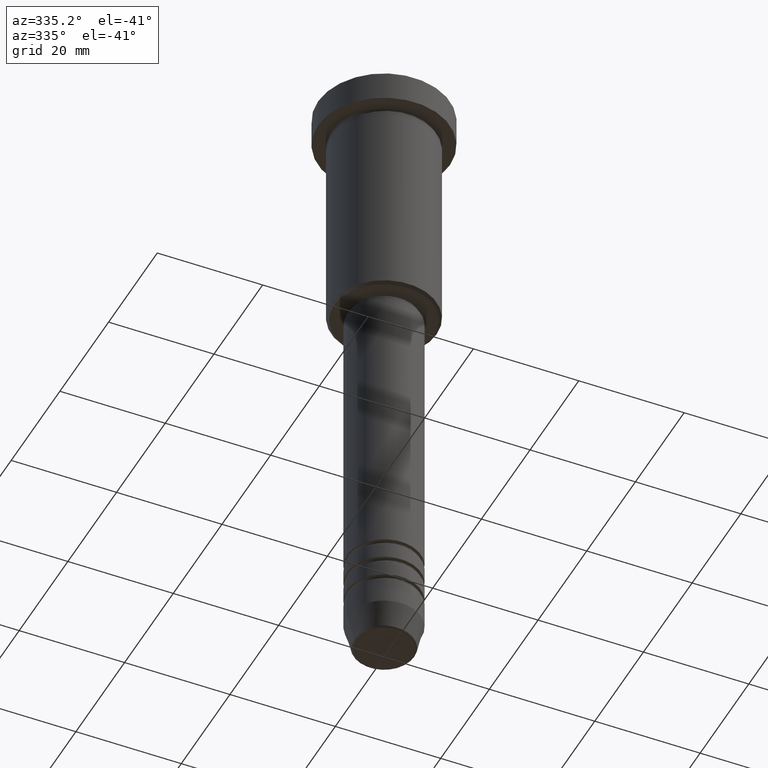
[diagram: clean part render]
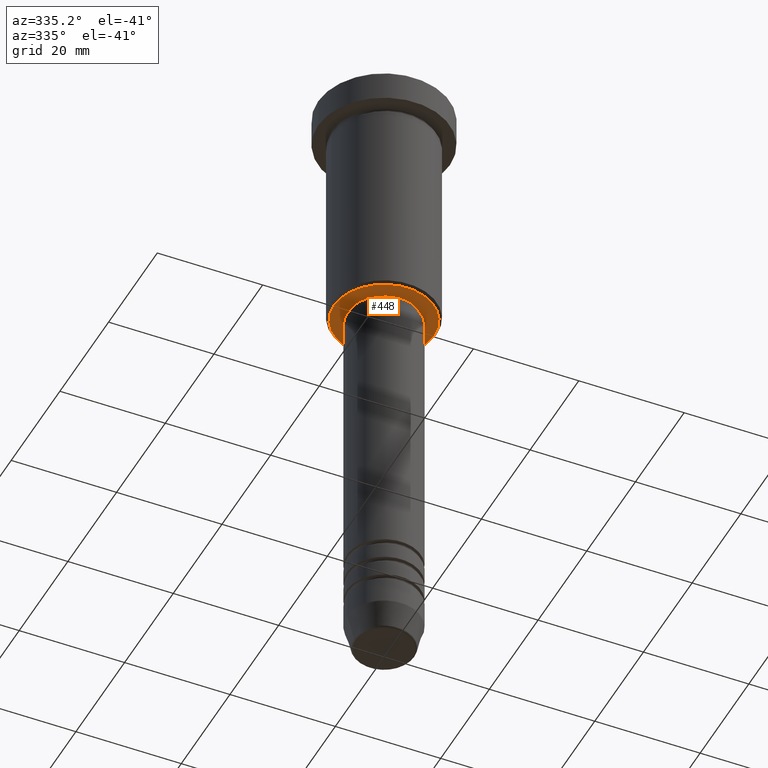
[diagram: same view with one face highlighted and labeled with its STEP entity id]
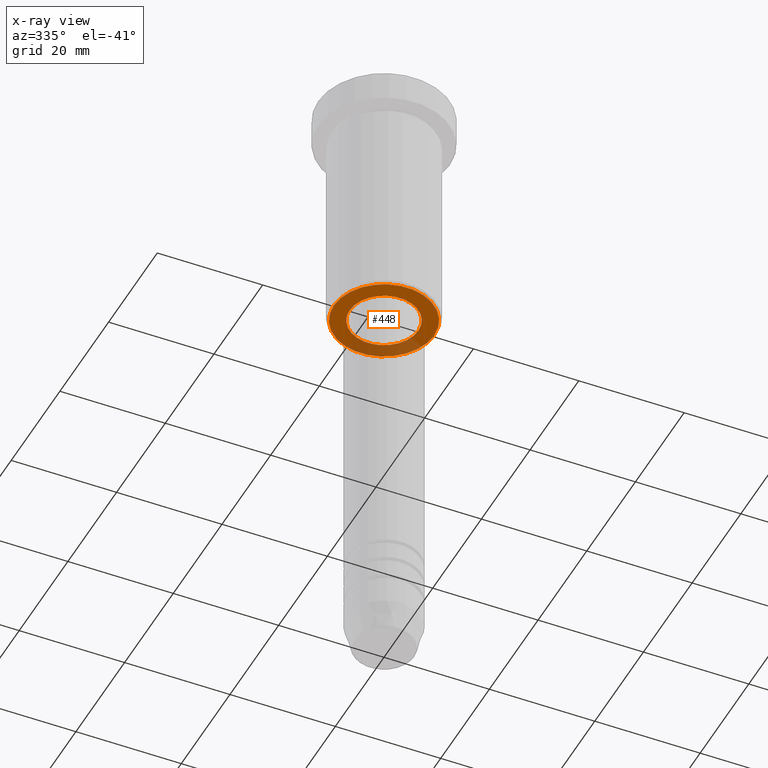
[diagram: x-ray of the same camera — body ghosted, the highlighted face saturated]
A machine part, auxiliary view. The second image highlights one B-rep face of the part: STEP entity #448.
The next image is the same camera in x-ray: the body ghosted, the highlighted face saturated — about 25% of this face is hidden behind the body in this view.
In plain terms, the highlighted planar face has unit normal (0, 0, -1).
Its self-contained STEP definition (entity closure, byte-faithful):
#24 = VERTEX_POINT ( 'NONE', #1014 ) ;
#60 = EDGE_CURVE ( 'NONE', #1086, #187, #554, .T. ) ;
#72 = DIRECTION ( 'NONE',  ( -0.000000000000000000, -0.000000000000000000, 1.000000000000000000 ) ) ;
#99 = AXIS2_PLACEMENT_3D ( 'NONE', #1072, #718, #268 ) ;
#145 = DIRECTION ( 'NONE',  ( -1.000000000000000000, 0.000000000000000000, -0.000000000000000000 ) ) ;
#187 = VERTEX_POINT ( 'NONE', #1134 ) ;
#202 = DIRECTION ( 'NONE',  ( 0.000000000000000000, 0.000000000000000000, -1.000000000000000000 ) ) ;
#223 = DIRECTION ( 'NONE',  ( 0.000000000000000000, 0.000000000000000000, -1.000000000000000000 ) ) ;
#239 = FACE_OUTER_BOUND ( 'NONE', #872, .T. ) ;
#268 = DIRECTION ( 'NONE',  ( -1.000000000000000000, 0.000000000000000000, 0.000000000000000000 ) ) ;
#312 = CARTESIAN_POINT ( 'NONE',  ( 0.000000000000000000, 10.00000000000000000, -46.00000000000001421 ) ) ;
#332 = DIRECTION ( 'NONE',  ( 1.000000000000000000, 0.000000000000000000, 0.000000000000000000 ) ) ;
#339 = AXIS2_PLACEMENT_3D ( 'NONE', #312, #223, #145 ) ;
#386 = ORIENTED_EDGE ( 'NONE', *, *, #510, .T. ) ;
#448 = ADVANCED_FACE ( 'NONE', ( #239, #769 ), #1145, .T. ) ;
#510 = EDGE_CURVE ( 'NONE', #187, #1086, #608, .T. ) ;
#511 = CARTESIAN_POINT ( 'NONE',  ( 0.000000000000000000, 0.000000000000000000, -46.00000000000001421 ) ) ;
#554 = CIRCLE ( 'NONE', #1028, 9.500000000000008882 ) ;
#561 = DIRECTION ( 'NONE',  ( -1.000000000000000000, 0.000000000000000000, 0.000000000000000000 ) ) ;
#562 = CARTESIAN_POINT ( 'NONE',  ( 9.500000000000008882, 0.000000000000000000, -46.00000000000001421 ) ) ;
#565 = VERTEX_POINT ( 'NONE', #1168 ) ;
#573 = AXIS2_PLACEMENT_3D ( 'NONE', #1091, #625, #997 ) ;
#587 = ORIENTED_EDGE ( 'NONE', *, *, #974, .T. ) ;
#608 = CIRCLE ( 'NONE', #99, 9.500000000000008882 ) ;
#625 = DIRECTION ( 'NONE',  ( -0.000000000000000000, -0.000000000000000000, 1.000000000000000000 ) ) ;
#649 = CARTESIAN_POINT ( 'NONE',  ( 0.000000000000000000, 0.000000000000000000, -46.00000000000001421 ) ) ;
#718 = DIRECTION ( 'NONE',  ( 0.000000000000000000, 0.000000000000000000, -1.000000000000000000 ) ) ;
#769 = FACE_BOUND ( 'NONE', #783, .T. ) ;
#783 = EDGE_LOOP ( 'NONE', ( #944, #587 ) ) ;
#872 = EDGE_LOOP ( 'NONE', ( #1033, #386 ) ) ;
#944 = ORIENTED_EDGE ( 'NONE', *, *, #1035, .T. ) ;
#974 = EDGE_CURVE ( 'NONE', #24, #565, #1022, .T. ) ;
#997 = DIRECTION ( 'NONE',  ( 1.000000000000000000, 0.000000000000000000, 0.000000000000000000 ) ) ;
#1003 = CIRCLE ( 'NONE', #573, 6.500000000000000000 ) ;
#1014 = CARTESIAN_POINT ( 'NONE',  ( -6.500000000000000000, 7.960204194457795477E-16, -46.00000000000001421 ) ) ;
#1022 = CIRCLE ( 'NONE', #1102, 6.500000000000000000 ) ;
#1028 = AXIS2_PLACEMENT_3D ( 'NONE', #649, #202, #561 ) ;
#1033 = ORIENTED_EDGE ( 'NONE', *, *, #60, .T. ) ;
#1035 = EDGE_CURVE ( 'NONE', #565, #24, #1003, .T. ) ;
#1072 = CARTESIAN_POINT ( 'NONE',  ( 0.000000000000000000, 0.000000000000000000, -46.00000000000001421 ) ) ;
#1086 = VERTEX_POINT ( 'NONE', #562 ) ;
#1091 = CARTESIAN_POINT ( 'NONE',  ( 0.000000000000000000, 0.000000000000000000, -46.00000000000001421 ) ) ;
#1102 = AXIS2_PLACEMENT_3D ( 'NONE', #511, #72, #332 ) ;
#1134 = CARTESIAN_POINT ( 'NONE',  ( -9.500000000000008882, 1.194030629168669864E-15, -46.00000000000001421 ) ) ;
#1145 = PLANE ( 'NONE',  #339 ) ;
#1168 = CARTESIAN_POINT ( 'NONE',  ( 6.500000000000000000, 0.000000000000000000, -46.00000000000001421 ) ) ;